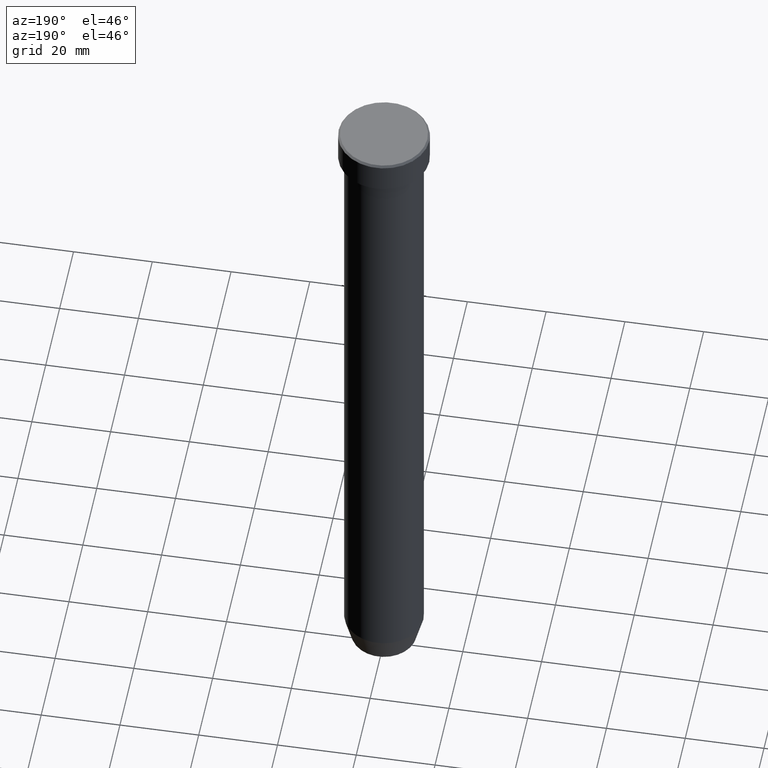
[diagram: clean part render]
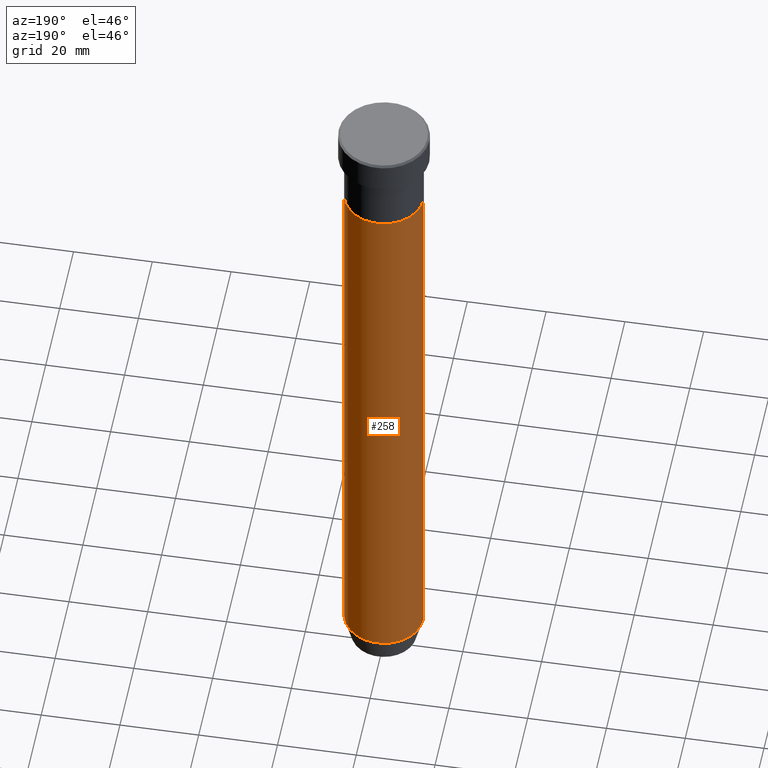
[diagram: same view with one face highlighted and labeled with its STEP entity id]
A machine part, auxiliary view. The second image highlights one B-rep face of the part: STEP entity #258.
In plain terms, the highlighted cylindrical surface (partial cylindrical patch) has radius 10 mm, axis along (-0, -0, 1).
Its self-contained STEP definition (entity closure, byte-faithful):
#13 = LINE ( 'NONE', #388, #554 ) ;
#20 = CYLINDRICAL_SURFACE ( 'NONE', #345, 9.999999999999998224 ) ;
#43 = VERTEX_POINT ( 'NONE', #249 ) ;
#62 = CIRCLE ( 'NONE', #104, 9.999999999999998224 ) ;
#67 = EDGE_CURVE ( 'NONE', #160, #43, #62, .T. ) ;
#86 = CARTESIAN_POINT ( 'NONE',  ( -10.00000000000000000, 1.224646799147353256E-15, -22.00000000000000000 ) ) ;
#104 = AXIS2_PLACEMENT_3D ( 'NONE', #164, #399, #353 ) ;
#108 = CARTESIAN_POINT ( 'NONE',  ( 0.000000000000000000, 0.000000000000000000, 0.000000000000000000 ) ) ;
#117 = EDGE_CURVE ( 'NONE', #383, #516, #593, .T. ) ;
#127 = DIRECTION ( 'NONE',  ( -0.000000000000000000, -0.000000000000000000, 1.000000000000000000 ) ) ;
#128 = DIRECTION ( 'NONE',  ( -0.000000000000000000, -0.000000000000000000, 1.000000000000000000 ) ) ;
#153 = DIRECTION ( 'NONE',  ( 1.000000000000000000, 0.000000000000000000, 0.000000000000000000 ) ) ;
#160 = VERTEX_POINT ( 'NONE', #175 ) ;
#164 = CARTESIAN_POINT ( 'NONE',  ( 0.000000000000000000, 0.000000000000000000, -173.0000000000000000 ) ) ;
#172 = CARTESIAN_POINT ( 'NONE',  ( 0.000000000000000000, 0.000000000000000000, -22.00000000000000000 ) ) ;
#175 = CARTESIAN_POINT ( 'NONE',  ( 9.999999999999998224, 0.000000000000000000, -173.0000000000000000 ) ) ;
#207 = AXIS2_PLACEMENT_3D ( 'NONE', #172, #447, #270 ) ;
#227 = EDGE_CURVE ( 'NONE', #43, #516, #599, .T. ) ;
#249 = CARTESIAN_POINT ( 'NONE',  ( -9.999999999999998224, 1.224646799147353059E-15, -173.0000000000000000 ) ) ;
#256 = VECTOR ( 'NONE', #127, 1000.000000000000000 ) ;
#258 = ADVANCED_FACE ( 'NONE', ( #568 ), #20, .T. ) ;
#270 = DIRECTION ( 'NONE',  ( 1.000000000000000000, 0.000000000000000000, 0.000000000000000000 ) ) ;
#285 = ORIENTED_EDGE ( 'NONE', *, *, #117, .F. ) ;
#345 = AXIS2_PLACEMENT_3D ( 'NONE', #108, #566, #153 ) ;
#353 = DIRECTION ( 'NONE',  ( 1.000000000000000000, 0.000000000000000000, 0.000000000000000000 ) ) ;
#359 = EDGE_LOOP ( 'NONE', ( #597, #564, #285, #418 ) ) ;
#374 = CARTESIAN_POINT ( 'NONE',  ( -9.999999999999998224, 1.224646799147353059E-15, 0.000000000000000000 ) ) ;
#383 = VERTEX_POINT ( 'NONE', #463 ) ;
#387 = EDGE_CURVE ( 'NONE', #160, #383, #13, .T. ) ;
#388 = CARTESIAN_POINT ( 'NONE',  ( 9.999999999999998224, 0.000000000000000000, 0.000000000000000000 ) ) ;
#399 = DIRECTION ( 'NONE',  ( -0.000000000000000000, -0.000000000000000000, 1.000000000000000000 ) ) ;
#418 = ORIENTED_EDGE ( 'NONE', *, *, #387, .F. ) ;
#447 = DIRECTION ( 'NONE',  ( -0.000000000000000000, -0.000000000000000000, 1.000000000000000000 ) ) ;
#463 = CARTESIAN_POINT ( 'NONE',  ( 10.00000000000000000, 0.000000000000000000, -22.00000000000000000 ) ) ;
#516 = VERTEX_POINT ( 'NONE', #86 ) ;
#554 = VECTOR ( 'NONE', #128, 1000.000000000000000 ) ;
#564 = ORIENTED_EDGE ( 'NONE', *, *, #227, .T. ) ;
#566 = DIRECTION ( 'NONE',  ( -0.000000000000000000, -0.000000000000000000, 1.000000000000000000 ) ) ;
#568 = FACE_OUTER_BOUND ( 'NONE', #359, .T. ) ;
#593 = CIRCLE ( 'NONE', #207, 10.00000000000000000 ) ;
#597 = ORIENTED_EDGE ( 'NONE', *, *, #67, .T. ) ;
#599 = LINE ( 'NONE', #374, #256 ) ;